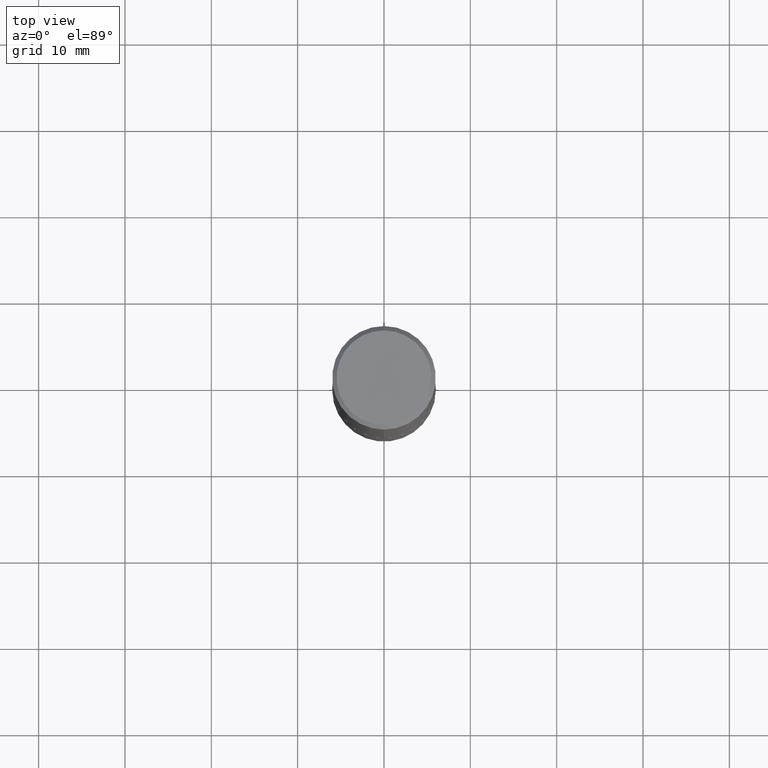
[diagram: clean part render]
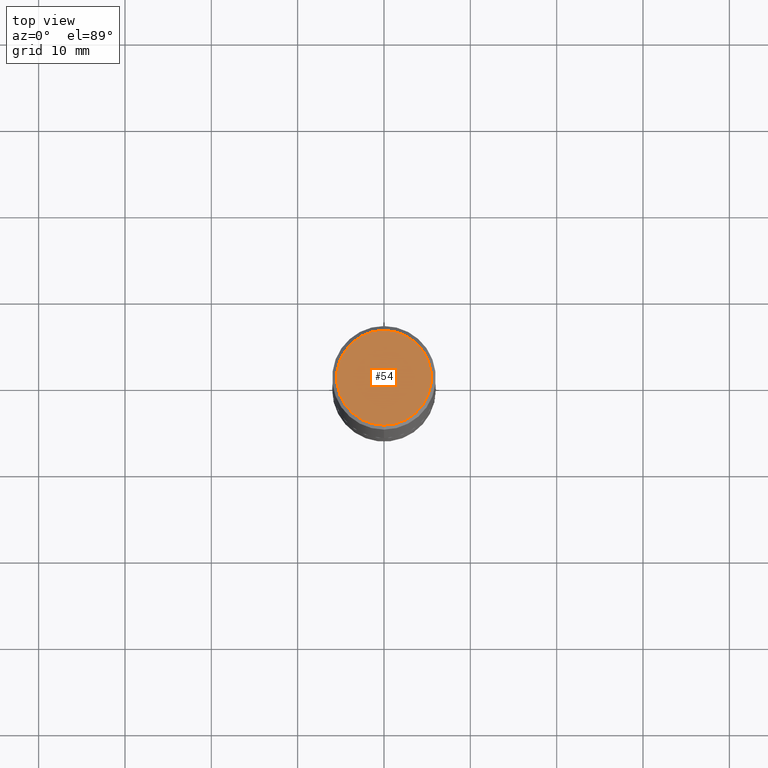
[diagram: same view with one face highlighted and labeled with its STEP entity id]
A machine part, top view. The second image highlights one B-rep face of the part: STEP entity #54.
In plain terms, the highlighted planar face has unit normal (0, -0, -1).
Its self-contained STEP definition (entity closure, byte-faithful):
#1 = ORIENTED_EDGE ( 'NONE', *, *, #212, .T. ) ;
#9 = VERTEX_POINT ( 'NONE', #57 ) ;
#17 = DIRECTION ( 'NONE',  ( 6.982962677686265922E-15, 1.000000000000000000, -3.490307074209145884E-15 ) ) ;
#54 = ADVANCED_FACE ( 'NONE', ( #166 ), #294, .F. ) ;
#57 = CARTESIAN_POINT ( 'NONE',  ( 1.579546157692634608E-15, 0.2162000000000002531, -9.682838899629094542E-16 ) ) ;
#79 = DIRECTION ( 'NONE',  ( -6.982962677686265922E-15, -1.000000000000000000, 3.490307074209145490E-15 ) ) ;
#124 = CIRCLE ( 'NONE', #359, 0.2162000000000002531 ) ;
#131 = DIRECTION ( 'NONE',  ( 2.446288790796431049E-29, -3.490307074209145884E-15, -1.000000000000000000 ) ) ;
#135 = CARTESIAN_POINT ( 'NONE',  ( -1.551844647095920733E-15, -0.2162000000000002531, 5.409248889251267552E-16 ) ) ;
#166 = FACE_OUTER_BOUND ( 'NONE', #210, .T. ) ;
#183 = AXIS2_PLACEMENT_3D ( 'NONE', #250, #131, #17 ) ;
#210 = EDGE_LOOP ( 'NONE', ( #276, #1 ) ) ;
#212 = EDGE_CURVE ( 'NONE', #237, #9, #416, .T. ) ;
#223 = AXIS2_PLACEMENT_3D ( 'NONE', #235, #412, #79 ) ;
#235 = CARTESIAN_POINT ( 'NONE',  ( 5.227217669423442598E-45, -7.458070722745632774E-31, -2.136795005188913741E-16 ) ) ;
#237 = VERTEX_POINT ( 'NONE', #135 ) ;
#248 = DIRECTION ( 'NONE',  ( -2.446288790796431609E-29, 3.490307074209145490E-15, 1.000000000000000000 ) ) ;
#250 = CARTESIAN_POINT ( 'NONE',  ( 1.509716530915772493E-15, 0.2162000000000002531, -8.614441397034637301E-16 ) ) ;
#276 = ORIENTED_EDGE ( 'NONE', *, *, #324, .T. ) ;
#294 = PLANE ( 'NONE',  #183 ) ;
#303 = CARTESIAN_POINT ( 'NONE',  ( 5.227217669423442598E-45, -7.458070722745632774E-31, -2.136795005188913741E-16 ) ) ;
#308 = DIRECTION ( 'NONE',  ( -6.982962677686265922E-15, -1.000000000000000000, 3.490307074209145490E-15 ) ) ;
#324 = EDGE_CURVE ( 'NONE', #9, #237, #124, .T. ) ;
#359 = AXIS2_PLACEMENT_3D ( 'NONE', #303, #248, #308 ) ;
#412 = DIRECTION ( 'NONE',  ( -2.446288790796431609E-29, 3.490307074209145490E-15, 1.000000000000000000 ) ) ;
#416 = CIRCLE ( 'NONE', #223, 0.2162000000000002531 ) ;